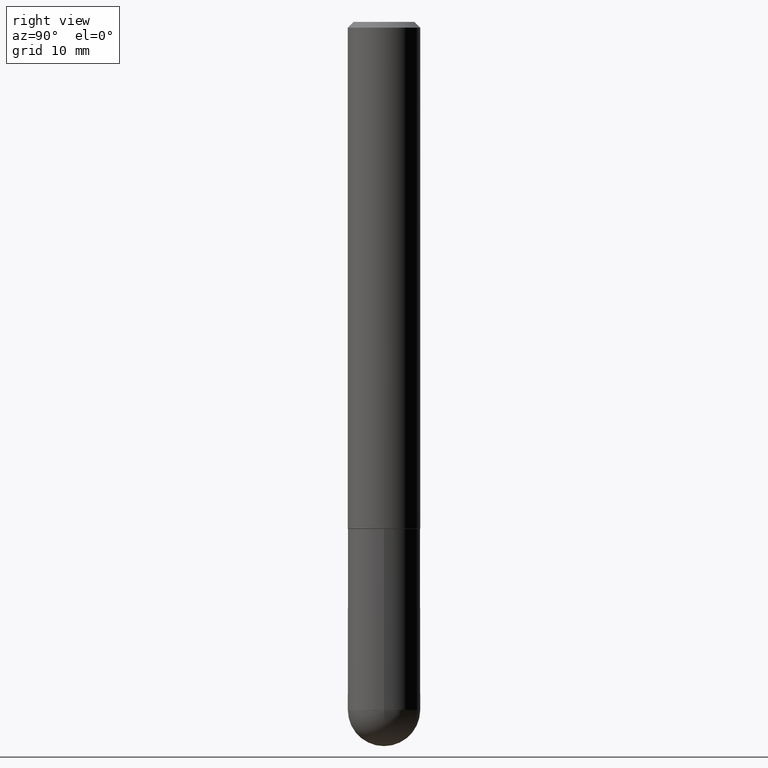
[diagram: clean part render]
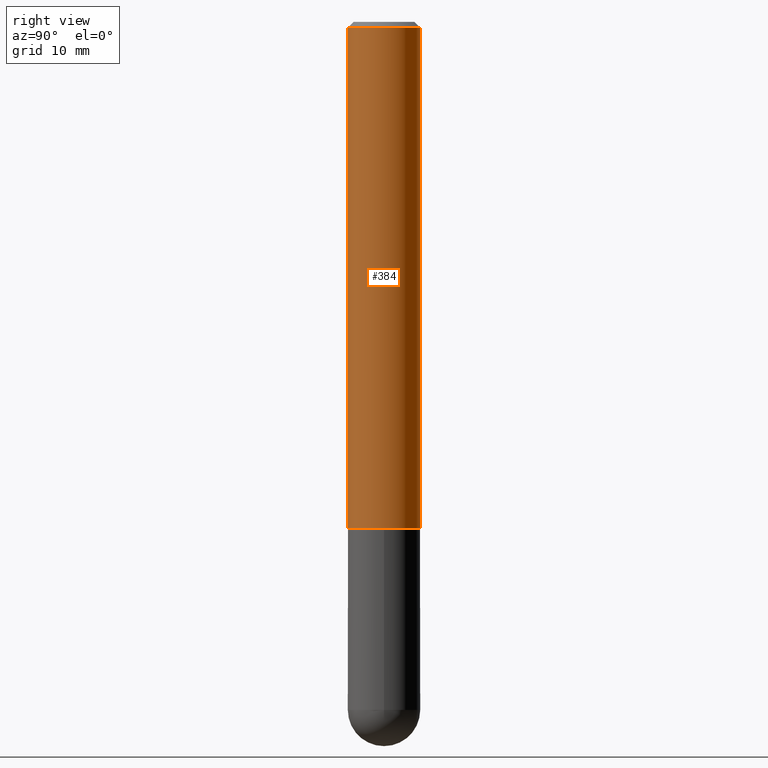
[diagram: same view with one face highlighted and labeled with its STEP entity id]
A machine part, right view. The second image highlights one B-rep face of the part: STEP entity #384.
In plain terms, the highlighted cylindrical surface (edge-blend (fillet) strip) has radius 3.175 mm, axis along (-0, 0, 1).
Its self-contained STEP definition (entity closure, byte-faithful):
#2 = DIRECTION ( 'NONE',  ( -6.982962677686266711E-15, -1.000000000000000000, 3.491141472859906642E-15 ) ) ;
#13 = CARTESIAN_POINT ( 'NONE',  ( 4.891412266665553962E-31, -6.982282945719821124E-17, -0.02000000000000002470 ) ) ;
#26 = VERTEX_POINT ( 'NONE', #42 ) ;
#32 = DIRECTION ( 'NONE',  ( -2.445706133332773740E-29, 3.491141472859906642E-15, 1.000000000000000000 ) ) ;
#39 = EDGE_CURVE ( 'NONE', #26, #88, #246, .T. ) ;
#42 = CARTESIAN_POINT ( 'NONE',  ( -8.575622497214408537E-16, -0.1250000000000000555, -0.01999999999999959102 ) ) ;
#51 = ORIENTED_EDGE ( 'NONE', *, *, #399, .F. ) ;
#55 = AXIS2_PLACEMENT_3D ( 'NONE', #322, #256, #95 ) ;
#63 = CARTESIAN_POINT ( 'NONE',  ( -8.728703347107841277E-16, -0.1250000000000001110, 4.363926841074887247E-16 ) ) ;
#71 = VERTEX_POINT ( 'NONE', #398 ) ;
#88 = VERTEX_POINT ( 'NONE', #117 ) ;
#90 = LINE ( 'NONE', #161, #133 ) ;
#95 = DIRECTION ( 'NONE',  ( -6.982962677686265133E-15, -1.000000000000000000, 4.370956789862812472E-15 ) ) ;
#101 = FACE_OUTER_BOUND ( 'NONE', #200, .T. ) ;
#117 = CARTESIAN_POINT ( 'NONE',  ( 8.728703347107837333E-16, 0.1249999999999999306, -0.02000000000000046185 ) ) ;
#119 = VECTOR ( 'NONE', #356, 39.37007874015748143 ) ;
#126 = CARTESIAN_POINT ( 'NONE',  ( 0.000000000000000000, 0.000000000000000000, 0.000000000000000000 ) ) ;
#127 = EDGE_CURVE ( 'NONE', #144, #71, #280, .T. ) ;
#133 = VECTOR ( 'NONE', #32, 39.37007874015748143 ) ;
#144 = VERTEX_POINT ( 'NONE', #225 ) ;
#159 = CYLINDRICAL_SURFACE ( 'NONE', #190, 0.1250000000000001110 ) ;
#161 = CARTESIAN_POINT ( 'NONE',  ( 8.881784197001260212E-16, 0.1250000000000001110, -4.363926841074887247E-16 ) ) ;
#190 = AXIS2_PLACEMENT_3D ( 'NONE', #126, #228, #2 ) ;
#200 = EDGE_LOOP ( 'NONE', ( #390, #410, #412, #51 ) ) ;
#225 = CARTESIAN_POINT ( 'NONE',  ( -8.728703347107421208E-16, -0.1250000000000063560, -1.748999999999999666 ) ) ;
#228 = DIRECTION ( 'NONE',  ( -2.445706133332774021E-29, 3.491141472859906642E-15, 1.000000000000000000 ) ) ;
#231 = LINE ( 'NONE', #63, #119 ) ;
#246 = CIRCLE ( 'NONE', #353, 0.1250000000000000000 ) ;
#256 = DIRECTION ( 'NONE',  ( -2.445706133332774021E-29, 3.491141472859906642E-15, 1.000000000000000000 ) ) ;
#268 = DIRECTION ( 'NONE',  ( -6.982962677686265922E-15, -1.000000000000000000, 3.483106191921935554E-15 ) ) ;
#280 = CIRCLE ( 'NONE', #55, 0.1250000000000002498 ) ;
#322 = CARTESIAN_POINT ( 'NONE',  ( 4.277540027199021844E-29, -6.106006436031975850E-15, -1.749000000000000110 ) ) ;
#344 = EDGE_CURVE ( 'NONE', #71, #88, #90, .T. ) ;
#353 = AXIS2_PLACEMENT_3D ( 'NONE', #13, #364, #268 ) ;
#356 = DIRECTION ( 'NONE',  ( -2.445706133332773740E-29, 3.491141472859906642E-15, 1.000000000000000000 ) ) ;
#364 = DIRECTION ( 'NONE',  ( -2.445706133332774021E-29, 3.491141472859906642E-15, 1.000000000000000000 ) ) ;
#384 = ADVANCED_FACE ( 'NONE', ( #101 ), #159, .T. ) ;
#390 = ORIENTED_EDGE ( 'NONE', *, *, #127, .T. ) ;
#398 = CARTESIAN_POINT ( 'NONE',  ( 8.881784197001479121E-16, 0.1249999999999941019, -1.749000000000000554 ) ) ;
#399 = EDGE_CURVE ( 'NONE', #144, #26, #231, .T. ) ;
#410 = ORIENTED_EDGE ( 'NONE', *, *, #344, .T. ) ;
#412 = ORIENTED_EDGE ( 'NONE', *, *, #39, .F. ) ;